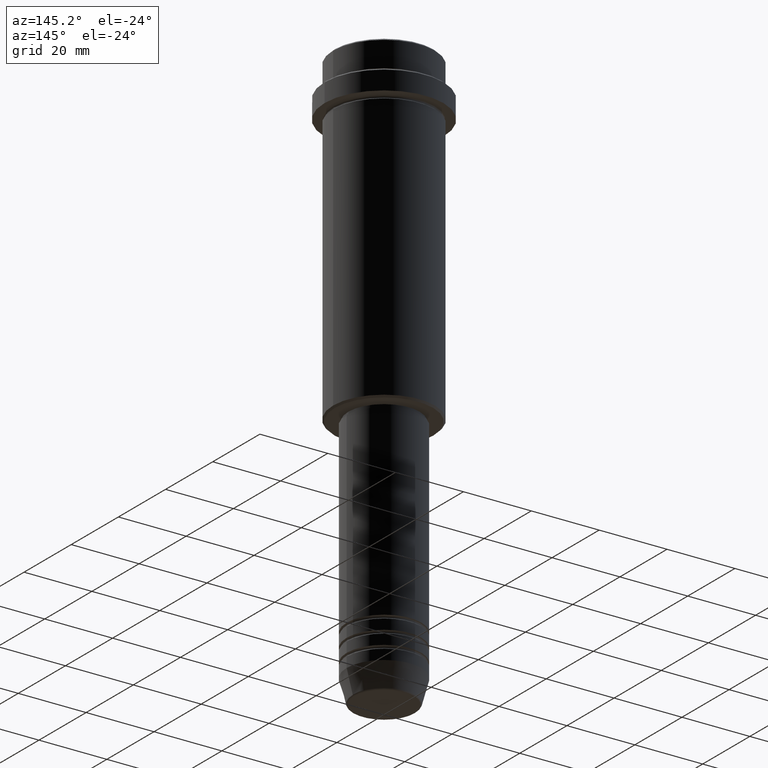
[diagram: clean part render]
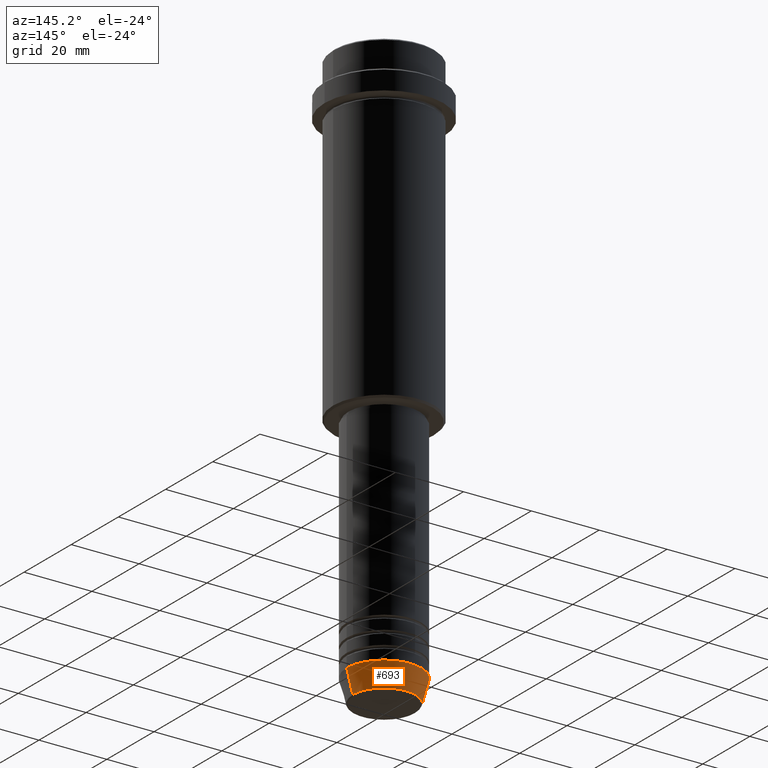
[diagram: same view with one face highlighted and labeled with its STEP entity id]
A machine part, auxiliary view. The second image highlights one B-rep face of the part: STEP entity #693.
In plain terms, the highlighted conical surface has half-angle 15 deg.
Its self-contained STEP definition (entity closure, byte-faithful):
#102 = CIRCLE ( 'NONE', #684, 9.223655072137194821 ) ;
#228 = VERTEX_POINT ( 'NONE', #317 ) ;
#236 = LINE ( 'NONE', #1204, #1002 ) ;
#317 = CARTESIAN_POINT ( 'NONE',  ( -9.223655072137194821, 1.238341722557647596E-15, -169.6294095225512422 ) ) ;
#343 = FACE_OUTER_BOUND ( 'NONE', #1196, .T. ) ;
#346 = CARTESIAN_POINT ( 'NONE',  ( -11.00000000000000000, 1.347111479062088405E-15, -163.0000000000000000 ) ) ;
#374 = CARTESIAN_POINT ( 'NONE',  ( 11.00000000000000000, 0.000000000000000000, -163.0000000000000000 ) ) ;
#430 = ORIENTED_EDGE ( 'NONE', *, *, #676, .F. ) ;
#446 = VERTEX_POINT ( 'NONE', #697 ) ;
#462 = EDGE_CURVE ( 'NONE', #1085, #228, #102, .T. ) ;
#524 = VERTEX_POINT ( 'NONE', #374 ) ;
#644 = ORIENTED_EDGE ( 'NONE', *, *, #716, .F. ) ;
#650 = CARTESIAN_POINT ( 'NONE',  ( 9.223655072137194821, 0.000000000000000000, -169.6294095225512422 ) ) ;
#655 = AXIS2_PLACEMENT_3D ( 'NONE', #998, #874, #674 ) ;
#667 = CARTESIAN_POINT ( 'NONE',  ( 0.000000000000000000, 0.000000000000000000, -163.0000000000000000 ) ) ;
#674 = DIRECTION ( 'NONE',  ( 1.000000000000000000, 0.000000000000000000, 0.000000000000000000 ) ) ;
#676 = EDGE_CURVE ( 'NONE', #524, #446, #1115, .T. ) ;
#684 = AXIS2_PLACEMENT_3D ( 'NONE', #1040, #911, #798 ) ;
#693 = ADVANCED_FACE ( 'NONE', ( #343 ), #1022, .T. ) ;
#697 = CARTESIAN_POINT ( 'NONE',  ( -11.00000000000000000, 1.347111479062088405E-15, -163.0000000000000000 ) ) ;
#716 = EDGE_CURVE ( 'NONE', #1085, #524, #236, .T. ) ;
#798 = DIRECTION ( 'NONE',  ( 1.000000000000000000, 0.000000000000000000, 0.000000000000000000 ) ) ;
#874 = DIRECTION ( 'NONE',  ( -0.000000000000000000, -0.000000000000000000, 1.000000000000000000 ) ) ;
#893 = LINE ( 'NONE', #346, #1414 ) ;
#911 = DIRECTION ( 'NONE',  ( -0.000000000000000000, -0.000000000000000000, 1.000000000000000000 ) ) ;
#986 = DIRECTION ( 'NONE',  ( 0.2588190451025213501, 0.000000000000000000, 0.9659258262890680902 ) ) ;
#998 = CARTESIAN_POINT ( 'NONE',  ( 0.000000000000000000, 0.000000000000000000, -163.0000000000000000 ) ) ;
#1002 = VECTOR ( 'NONE', #986, 1000.000000000000000 ) ;
#1022 = CONICAL_SURFACE ( 'NONE', #655, 11.00000000000000000, 0.2617993877991500740 ) ;
#1040 = CARTESIAN_POINT ( 'NONE',  ( 0.000000000000000000, 0.000000000000000000, -169.6294095225512422 ) ) ;
#1045 = AXIS2_PLACEMENT_3D ( 'NONE', #667, #1104, #1190 ) ;
#1085 = VERTEX_POINT ( 'NONE', #650 ) ;
#1104 = DIRECTION ( 'NONE',  ( -0.000000000000000000, -0.000000000000000000, 1.000000000000000000 ) ) ;
#1115 = CIRCLE ( 'NONE', #1045, 11.00000000000000000 ) ;
#1151 = ORIENTED_EDGE ( 'NONE', *, *, #462, .T. ) ;
#1153 = ORIENTED_EDGE ( 'NONE', *, *, #1279, .T. ) ;
#1190 = DIRECTION ( 'NONE',  ( 1.000000000000000000, 0.000000000000000000, 0.000000000000000000 ) ) ;
#1196 = EDGE_LOOP ( 'NONE', ( #1151, #1153, #430, #644 ) ) ;
#1204 = CARTESIAN_POINT ( 'NONE',  ( 11.00000000000000000, 0.000000000000000000, -163.0000000000000000 ) ) ;
#1216 = DIRECTION ( 'NONE',  ( -0.2588190451025213501, 3.169619151431772337E-17, 0.9659258262890680902 ) ) ;
#1279 = EDGE_CURVE ( 'NONE', #228, #446, #893, .T. ) ;
#1414 = VECTOR ( 'NONE', #1216, 1000.000000000000000 ) ;